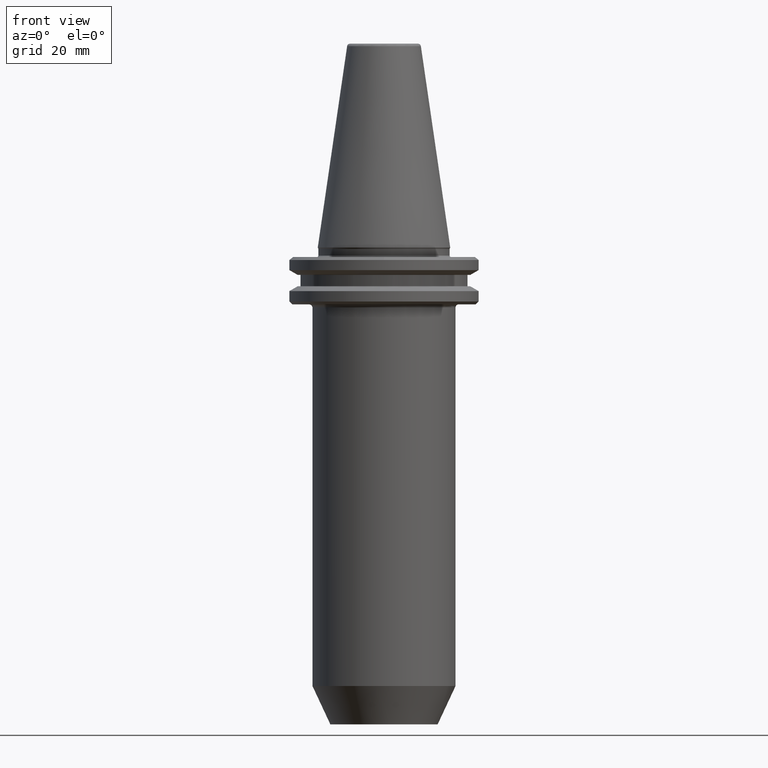
[diagram: clean part render]
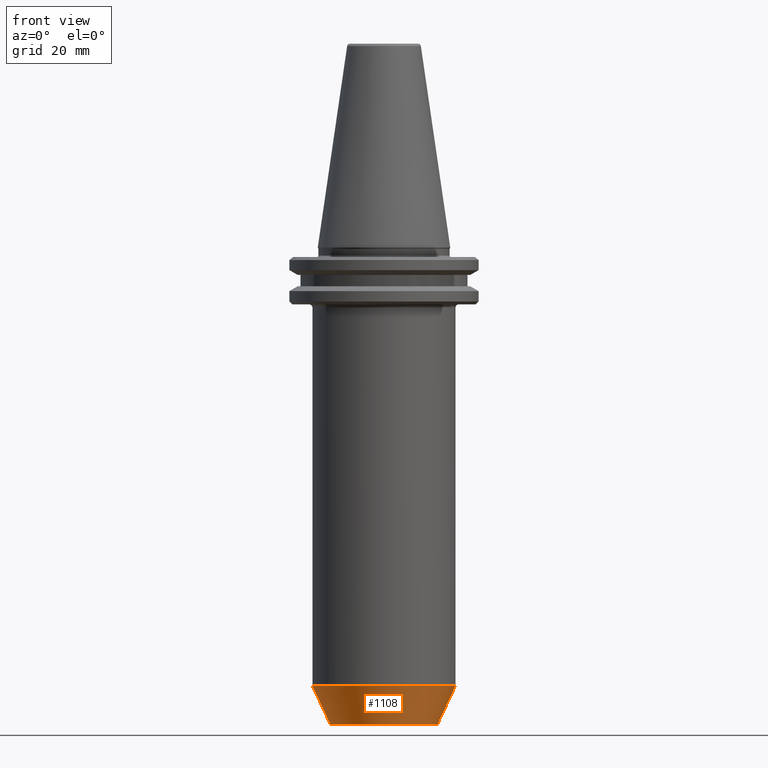
[diagram: same view with one face highlighted and labeled with its STEP entity id]
A machine part, front view. The second image highlights one B-rep face of the part: STEP entity #1108.
In plain terms, the highlighted conical surface has half-angle 25 deg.
Its self-contained STEP definition (entity closure, byte-faithful):
#7 = EDGE_CURVE ( 'NONE', #352, #925, #1082, .T. ) ;
#83 = AXIS2_PLACEMENT_3D ( 'NONE', #725, #722, #721 ) ;
#104 = CIRCLE ( 'NONE', #83, 24.00000000000000400 ) ;
#143 = CARTESIAN_POINT ( 'NONE',  ( 24.00000000000000700, 0.0000000000000000000, -147.1329584769423500 ) ) ;
#145 = EDGE_LOOP ( 'NONE', ( #733, #851, #526, #914 ) ) ;
#218 = DIRECTION ( 'NONE',  ( 0.4226182617406927800, 0.0000000000000000000, 0.9063077870366531600 ) ) ;
#228 = CARTESIAN_POINT ( 'NONE',  ( 17.99999999999998600, 0.0000000000000000000, -160.0000000000000000 ) ) ;
#297 = VERTEX_POINT ( 'NONE', #819 ) ;
#352 = VERTEX_POINT ( 'NONE', #228 ) ;
#358 = DIRECTION ( 'NONE',  ( -0.4226182617406927800, 5.175581015019577400E-017, 0.9063077870366531600 ) ) ;
#359 = CARTESIAN_POINT ( 'NONE',  ( -24.00000000000000700, 2.939152317953648700E-015, -147.1329584769423500 ) ) ;
#526 = ORIENTED_EDGE ( 'NONE', *, *, #7, .T. ) ;
#669 = CONICAL_SURFACE ( 'NONE', #1330, 24.00000000000000700, 0.4363323129985750000 ) ;
#715 = VERTEX_POINT ( 'NONE', #1307 ) ;
#721 = DIRECTION ( 'NONE',  ( 1.000000000000000000, 0.0000000000000000000, 0.0000000000000000000 ) ) ;
#722 = DIRECTION ( 'NONE',  ( 0.0000000000000000000, 0.0000000000000000000, 1.000000000000000000 ) ) ;
#725 = CARTESIAN_POINT ( 'NONE',  ( 0.0000000000000000000, 0.0000000000000000000, -147.1329584769423500 ) ) ;
#733 = ORIENTED_EDGE ( 'NONE', *, *, #1490, .F. ) ;
#741 = DIRECTION ( 'NONE',  ( 0.0000000000000000000, -0.0000000000000000000, 1.000000000000000000 ) ) ;
#743 = CARTESIAN_POINT ( 'NONE',  ( 0.0000000000000000000, 0.0000000000000000000, -147.1329584769423500 ) ) ;
#758 = DIRECTION ( 'NONE',  ( 1.000000000000000000, 0.0000000000000000000, 0.0000000000000000000 ) ) ;
#819 = CARTESIAN_POINT ( 'NONE',  ( -24.00000000000000700, 2.939152317953648700E-015, -147.1329584769423500 ) ) ;
#849 = DIRECTION ( 'NONE',  ( 1.000000000000000000, 0.0000000000000000000, 0.0000000000000000000 ) ) ;
#851 = ORIENTED_EDGE ( 'NONE', *, *, #1014, .T. ) ;
#852 = DIRECTION ( 'NONE',  ( 0.0000000000000000000, -0.0000000000000000000, 1.000000000000000000 ) ) ;
#853 = CARTESIAN_POINT ( 'NONE',  ( 0.0000000000000000000, 0.0000000000000000000, -160.0000000000000000 ) ) ;
#914 = ORIENTED_EDGE ( 'NONE', *, *, #1121, .F. ) ;
#925 = VERTEX_POINT ( 'NONE', #1079 ) ;
#970 = LINE ( 'NONE', #359, #1155 ) ;
#995 = VECTOR ( 'NONE', #218, 999.9999999999998900 ) ;
#1014 = EDGE_CURVE ( 'NONE', #715, #352, #1395, .T. ) ;
#1079 = CARTESIAN_POINT ( 'NONE',  ( 24.00000000000000700, 0.0000000000000000000, -147.1329584769423500 ) ) ;
#1082 = LINE ( 'NONE', #143, #995 ) ;
#1108 = ADVANCED_FACE ( 'NONE', ( #1182 ), #669, .T. ) ;
#1121 = EDGE_CURVE ( 'NONE', #297, #925, #104, .T. ) ;
#1155 = VECTOR ( 'NONE', #358, 999.9999999999998900 ) ;
#1182 = FACE_OUTER_BOUND ( 'NONE', #145, .T. ) ;
#1251 = AXIS2_PLACEMENT_3D ( 'NONE', #853, #852, #849 ) ;
#1307 = CARTESIAN_POINT ( 'NONE',  ( -17.99999999999998600, 2.571758278209441300E-015, -160.0000000000000000 ) ) ;
#1330 = AXIS2_PLACEMENT_3D ( 'NONE', #743, #741, #758 ) ;
#1395 = CIRCLE ( 'NONE', #1251, 17.99999999999998600 ) ;
#1490 = EDGE_CURVE ( 'NONE', #715, #297, #970, .T. ) ;